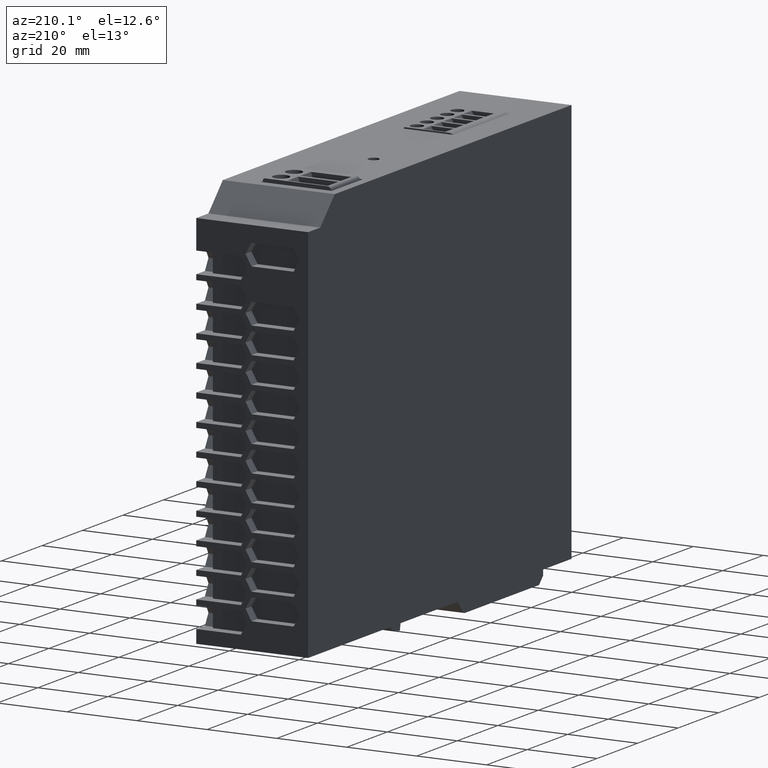
[diagram: clean part render]
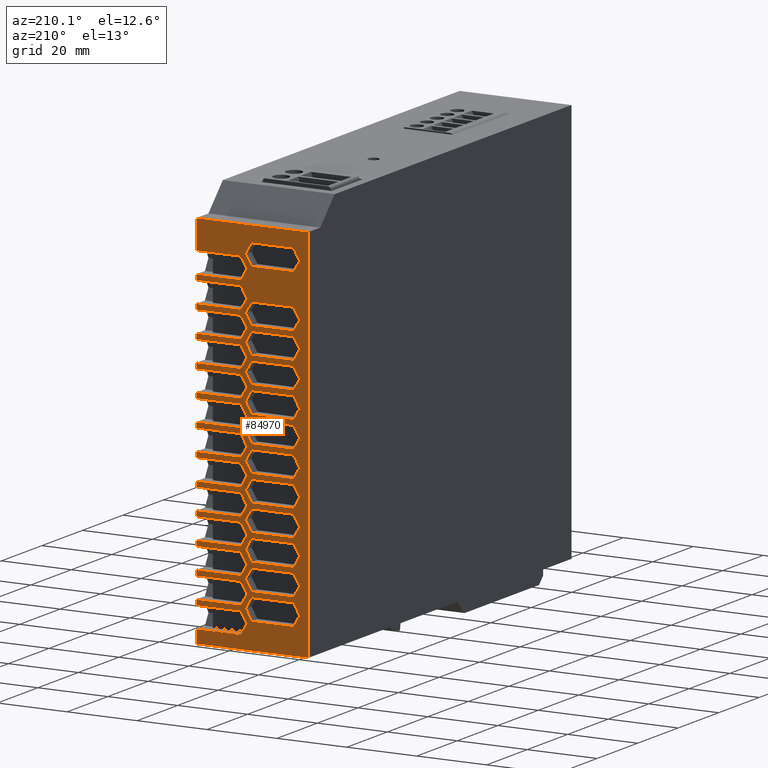
[diagram: same view with one face highlighted and labeled with its STEP entity id]
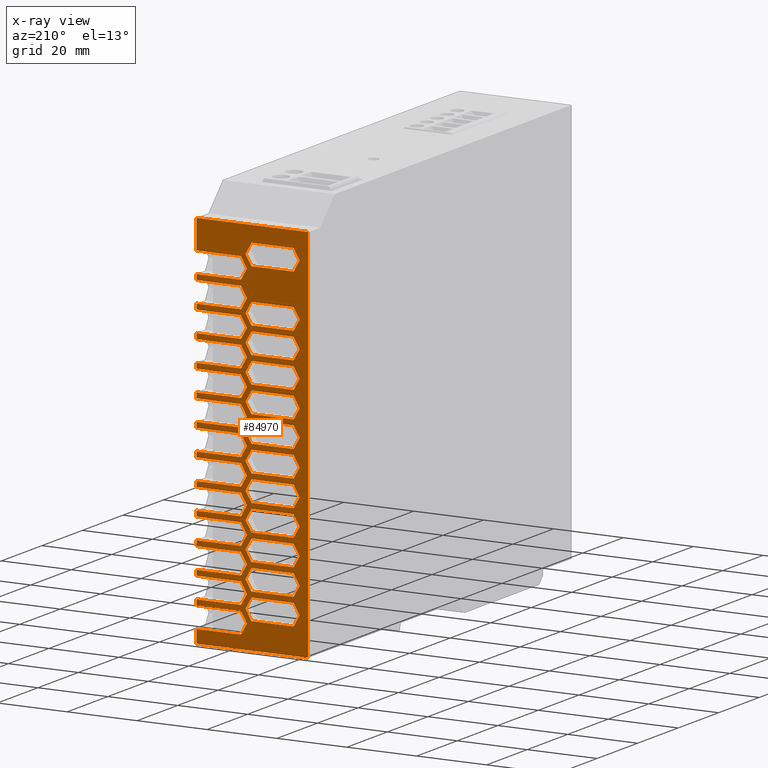
[diagram: x-ray of the same camera — body ghosted, the highlighted face saturated]
A machine part, auxiliary view. The second image highlights one B-rep face of the part: STEP entity #84970.
The next image is the same camera in x-ray: the body ghosted, the highlighted face saturated — about 0% of this face is hidden behind the body in this view.
In plain terms, the highlighted planar face has unit normal (0, 1, 0).
Its self-contained STEP definition (entity closure, byte-faithful):
#1290=CARTESIAN_POINT('',(32.,65.,-104.250000000001));
#1300=VERTEX_POINT('',#1290);
#1330=CARTESIAN_POINT('',(0.,65.,-104.249999999998));
#1340=DIRECTION('',(1.,0.,0.));
#1350=VECTOR('',#1340,1.);
#1360=LINE('',#1330,#1350);
#1370=CARTESIAN_POINT('',(19.2320508075694,65.,-104.25));
#1380=VERTEX_POINT('',#1370);
#1390=EDGE_CURVE('',#1380,#1300,#1360,.T.);
#4260=CARTESIAN_POINT('',(75.0906893516693,65.,0.));
#4270=DIRECTION('',(0.500000000000017,0.,0.866025403784429));
#4280=VECTOR('',#4270,1.);
#4290=LINE('',#4260,#4280);
#4300=CARTESIAN_POINT('',(17.5000000000013,65.,-99.7500000000005));
#4310=VERTEX_POINT('',#4300);
#4320=CARTESIAN_POINT('',(19.2320508075694,65.,-96.7500000000005));
#4330=VERTEX_POINT('',#4320);
#4340=EDGE_CURVE('',#4310,#4330,#4290,.T.);
#6670=CARTESIAN_POINT('',(0.,65.,-80.2499999999986));
#6680=DIRECTION('',(-1.,0.,0.));
#6690=VECTOR('',#6680,1.);
#6700=LINE('',#6670,#6690);
#6710=CARTESIAN_POINT('',(32.,65.,-80.2500000000008));
#6720=VERTEX_POINT('',#6710);
#6730=CARTESIAN_POINT('',(19.2320508075704,65.,-80.2500000000007));
#6740=VERTEX_POINT('',#6730);
#6750=EDGE_CURVE('',#6720,#6740,#6700,.T.);
#7230=CARTESIAN_POINT('',(0.,65.,-65.2500000000007));
#7240=DIRECTION('',(-1.,0.,0.));
#7250=VECTOR('',#7240,1.);
#7260=LINE('',#7230,#7250);
#7270=CARTESIAN_POINT('',(32.,65.,-65.2500000000008));
#7280=VERTEX_POINT('',#7270);
#7290=CARTESIAN_POINT('',(19.2320508075704,65.,-65.2500000000007));
#7300=VERTEX_POINT('',#7290);
#7310=EDGE_CURVE('',#7280,#7300,#7260,.T.);
#18890=CARTESIAN_POINT('',(70.7605623327469,65.,0.));
#18900=DIRECTION('',(0.500000000000017,0.,0.866025403784429));
#18910=VECTOR('',#18900,1.);
#18920=LINE('',#18890,#18910);
#18930=CARTESIAN_POINT('',(17.5000000000013,65.,-92.2500000000005));
#18940=VERTEX_POINT('',#18930);
#18950=CARTESIAN_POINT('',(19.2320508075694,65.,-89.2500000000005));
#18960=VERTEX_POINT('',#18950);
#18970=EDGE_CURVE('',#18940,#18960,#18920,.T.);
#19290=CARTESIAN_POINT('',(0.,65.,-95.2500000000007));
#19300=DIRECTION('',(-1.,0.,0.));
#19310=VECTOR('',#19300,1.);
#19320=LINE('',#19290,#19310);
#19330=CARTESIAN_POINT('',(32.,65.,-95.2500000000008));
#19340=VERTEX_POINT('',#19330);
#19350=CARTESIAN_POINT('',(19.2320508075704,65.,-95.2500000000007));
#19360=VERTEX_POINT('',#19350);
#19370=EDGE_CURVE('',#19340,#19360,#19320,.T.);
#21190=CARTESIAN_POINT('',(79.4208163705917,65.,0.));
#21200=DIRECTION('',(0.500000000000017,0.,0.866025403784429));
#21210=VECTOR('',#21200,1.);
#21220=LINE('',#21190,#21210);
#21230=CARTESIAN_POINT('',(17.5000000000013,65.,-107.25));
#21240=VERTEX_POINT('',#21230);
#21250=EDGE_CURVE('',#21240,#1380,#21220,.T.);
#21500=CARTESIAN_POINT('',(53.4400542570574,65.,0.));
#21510=DIRECTION('',(0.500000000000017,0.,0.866025403784429));
#21520=VECTOR('',#21510,1.);
#21530=LINE('',#21500,#21520);
#21540=CARTESIAN_POINT('',(17.5000000000013,65.,-62.2500000000005));
#21550=VERTEX_POINT('',#21540);
#21560=CARTESIAN_POINT('',(19.2320508075694,65.,-59.2500000000005));
#21570=VERTEX_POINT('',#21560);
#21580=EDGE_CURVE('',#21550,#21570,#21530,.T.);
#27810=CARTESIAN_POINT('',(0.,65.,-114.));
#27820=VERTEX_POINT('',#27810);
#27850=CARTESIAN_POINT('',(0.,65.,173.567243465811));
#27860=DIRECTION('',(0.,0.,-1.));
#27870=VECTOR('',#27860,1.);
#27880=LINE('',#27850,#27870);
#27890=CARTESIAN_POINT('',(0.,65.,-6.));
#27900=VERTEX_POINT('',#27890);
#27910=EDGE_CURVE('',#27900,#27820,#27880,.T.);
#35190=CARTESIAN_POINT('',(0.,65.,-72.7500000000007));
#35200=DIRECTION('',(-1.,0.,0.));
#35210=VECTOR('',#35200,1.);
#35220=LINE('',#35190,#35210);
#35230=CARTESIAN_POINT('',(32.,65.,-72.7500000000008));
#35240=VERTEX_POINT('',#35230);
#35250=CARTESIAN_POINT('',(19.2320508075704,65.,-72.7500000000007));
#35260=VERTEX_POINT('',#35250);
#35270=EDGE_CURVE('',#35240,#35260,#35220,.T.);
#43350=CARTESIAN_POINT('',(32.,65.,-6.));
#43360=VERTEX_POINT('',#43350);
#43390=CARTESIAN_POINT('',(32.,65.,0.));
#43400=DIRECTION('',(0.,0.,-1.));
#43410=VECTOR('',#43400,1.);
#43420=LINE('',#43390,#43410);
#43430=CARTESIAN_POINT('',(32.,65.,-14.2500000000007));
#43440=VERTEX_POINT('',#43430);
#43450=EDGE_CURVE('',#43360,#43440,#43420,.T.);
#43750=CARTESIAN_POINT('',(32.,65.,-20.2500000000008));
#43760=VERTEX_POINT('',#43750);
#43790=CARTESIAN_POINT('',(32.,65.,-21.7499999999998));
#43800=VERTEX_POINT('',#43790);
#43810=EDGE_CURVE('',#43760,#43800,#43420,.T.);
#43950=CARTESIAN_POINT('',(32.,65.,-27.7500000000008));
#43960=VERTEX_POINT('',#43950);
#43990=CARTESIAN_POINT('',(32.,65.,-29.2499999999996));
#44000=VERTEX_POINT('',#43990);
#44010=EDGE_CURVE('',#43960,#44000,#43420,.T.);
#44310=CARTESIAN_POINT('',(32.,65.,-35.2500000000008));
#44320=VERTEX_POINT('',#44310);
#44350=CARTESIAN_POINT('',(32.,65.,-36.7499999999995));
#44360=VERTEX_POINT('',#44350);
#44370=EDGE_CURVE('',#44320,#44360,#43420,.T.);
#44670=CARTESIAN_POINT('',(32.,65.,-42.7500000000008));
#44680=VERTEX_POINT('',#44670);
#44710=CARTESIAN_POINT('',(32.,65.,-44.2499999999993));
#44720=VERTEX_POINT('',#44710);
#44730=EDGE_CURVE('',#44680,#44720,#43420,.T.);
#45030=CARTESIAN_POINT('',(32.,65.,-50.2500000000008));
#45040=VERTEX_POINT('',#45030);
#45070=CARTESIAN_POINT('',(32.,65.,-51.7499999999991));
#45080=VERTEX_POINT('',#45070);
#45090=EDGE_CURVE('',#45040,#45080,#43420,.T.);
#45230=CARTESIAN_POINT('',(32.,65.,-57.7500000000008));
#45240=VERTEX_POINT('',#45230);
#45270=CARTESIAN_POINT('',(32.,65.,-59.2499999999989));
#45280=VERTEX_POINT('',#45270);
#45290=EDGE_CURVE('',#45240,#45280,#43420,.T.);
#45540=CARTESIAN_POINT('',(32.,65.,-66.7499999999987));
#45550=VERTEX_POINT('',#45540);
#45560=EDGE_CURVE('',#7280,#45550,#43420,.T.);
#45720=CARTESIAN_POINT('',(32.,65.,-74.2499999999986));
#45730=VERTEX_POINT('',#45720);
#45740=EDGE_CURVE('',#35240,#45730,#43420,.T.);
#45990=CARTESIAN_POINT('',(32.,65.,-81.7499999999984));
#46000=VERTEX_POINT('',#45990);
#46010=EDGE_CURVE('',#6720,#46000,#43420,.T.);
#46310=CARTESIAN_POINT('',(32.,65.,-87.7500000000008));
#46320=VERTEX_POINT('',#46310);
#46350=CARTESIAN_POINT('',(32.,65.,-89.2499999999982));
#46360=VERTEX_POINT('',#46350);
#46370=EDGE_CURVE('',#46320,#46360,#43420,.T.);
#46530=CARTESIAN_POINT('',(32.,65.,-96.7500000000007));
#46540=VERTEX_POINT('',#46530);
#46550=EDGE_CURVE('',#19340,#46540,#43420,.T.);
#46760=CARTESIAN_POINT('',(32.,65.,-102.750000000001));
#46770=VERTEX_POINT('',#46760);
#46800=EDGE_CURVE('',#46770,#1300,#43420,.T.);
#46940=CARTESIAN_POINT('',(32.,65.,-110.249999999998));
#46950=VERTEX_POINT('',#46940);
#46980=CARTESIAN_POINT('',(32.,65.,-114.));
#46990=VERTEX_POINT('',#46980);
#47000=EDGE_CURVE('',#46950,#46990,#43420,.T.);
#55830=CARTESIAN_POINT('',(0.,65.,-114.));
#55840=DIRECTION('',(-1.,0.,0.));
#55850=VECTOR('',#55840,1.);
#55860=LINE('',#55830,#55850);
#55870=EDGE_CURVE('',#46990,#27820,#55860,.T.);
#57860=CARTESIAN_POINT('',(0.,65.,-29.2499999999996));
#57870=DIRECTION('',(1.,0.,0.));
#57880=VECTOR('',#57870,1.);
#57890=LINE('',#57860,#57880);
#57900=CARTESIAN_POINT('',(19.2320508075701,65.,-29.2500000000008));
#57910=VERTEX_POINT('',#57900);
#57920=EDGE_CURVE('',#57910,#44000,#57890,.T.);
#60080=CARTESIAN_POINT('',(-40.0906893516667,65.,0.));
#60090=DIRECTION('',(-0.500000000000017,0.,0.866025403784429));
#60100=VECTOR('',#60090,1.);
#60110=LINE('',#60080,#60100);
#60120=CARTESIAN_POINT('',(19.2320508075704,65.,-102.750000000001));
#60130=VERTEX_POINT('',#60120);
#60140=EDGE_CURVE('',#60130,#4310,#60110,.T.);
#60320=CARTESIAN_POINT('',(-44.4208163705891,65.,0.));
#60330=DIRECTION('',(-0.500000000000017,0.,0.866025403784429));
#60340=VECTOR('',#60330,1.);
#60350=LINE('',#60320,#60340);
#60360=CARTESIAN_POINT('',(19.2320508075704,65.,-110.250000000001));
#60370=VERTEX_POINT('',#60360);
#60380=EDGE_CURVE('',#60370,#21240,#60350,.T.);
#62840=CARTESIAN_POINT('',(57.7701812759798,65.,0.));
#62850=DIRECTION('',(0.500000000000017,0.,0.866025403784429));
#62860=VECTOR('',#62850,1.);
#62870=LINE('',#62840,#62860);
#62880=CARTESIAN_POINT('',(17.5000000000013,65.,-69.7500000000005));
#62890=VERTEX_POINT('',#62880);
#62900=CARTESIAN_POINT('',(19.2320508075694,65.,-66.7500000000005));
#62910=VERTEX_POINT('',#62900);
#62920=EDGE_CURVE('',#62890,#62910,#62870,.T.);
#71570=CARTESIAN_POINT('',(0.,65.,-110.250000000001));
#71580=DIRECTION('',(-1.,0.,0.));
#71590=VECTOR('',#71580,1.);
#71600=LINE('',#71570,#71590);
#71610=EDGE_CURVE('',#46950,#60370,#71600,.T.);
#75650=CARTESIAN_POINT('',(66.4304353138246,65.,0.));
#75660=DIRECTION('',(0.500000000000017,0.,0.866025403784429));
#75670=VECTOR('',#75660,1.);
#75680=LINE('',#75650,#75670);
#75690=CARTESIAN_POINT('',(17.5000000000013,65.,-84.7500000000005));
#75700=VERTEX_POINT('',#75690);
#75710=CARTESIAN_POINT('',(19.2320508075694,65.,-81.7500000000005));
#75720=VERTEX_POINT('',#75710);
#75730=EDGE_CURVE('',#75700,#75720,#75680,.T.);
#75910=CARTESIAN_POINT('',(40.,65.,-114.));
#75920=DIRECTION('',(0.,1.,0.));
#75930=DIRECTION('',(0.,0.,-1.));
#75940=AXIS2_PLACEMENT_3D('',#75910,#75920,#75930);
#75950=PLANE('',#75940);
#75960=CARTESIAN_POINT('',(0.,65.,-84.0000000000008));
#75970=DIRECTION('',(-1.,0.,0.));
#75980=VECTOR('',#75970,1.);
#75990=LINE('',#75960,#75980);
#76000=CARTESIAN_POINT('',(16.2009491924313,65.,-84.0000000000008));
#76010=VERTEX_POINT('',#76000);
#76020=CARTESIAN_POINT('',(4.16505080757037,65.,-84.0000000000006));
#76030=VERTEX_POINT('',#76020);
#76040=EDGE_CURVE('',#76010,#76030,#75990,.T.);
#76050=ORIENTED_EDGE('',*,*,#76040,.F.);
#76060=CARTESIAN_POINT('',(-44.3323718043607,65.,0.));
#76070=DIRECTION('',(-0.500000000000017,0.,0.866025403784429));
#76080=VECTOR('',#76070,1.);
#76090=LINE('',#76060,#76080);
#76100=CARTESIAN_POINT('',(2.43300000000031,65.,-81.0000000000005));
#76110=VERTEX_POINT('',#76100);
#76120=EDGE_CURVE('',#76030,#76110,#76090,.T.);
#76130=ORIENTED_EDGE('',*,*,#76120,.F.);
#76140=CARTESIAN_POINT('',(49.1983718043624,65.,0.));
#76150=DIRECTION('',(0.500000000000017,0.,0.866025403784429));
#76160=VECTOR('',#76150,1.);
#76170=LINE('',#76140,#76160);
#76180=CARTESIAN_POINT('',(4.16505080756943,65.,-78.0000000000005));
#76190=VERTEX_POINT('',#76180);
#76200=EDGE_CURVE('',#76110,#76190,#76170,.T.);
#76210=ORIENTED_EDGE('',*,*,#76200,.F.);
#76220=CARTESIAN_POINT('',(0.,65.,-78.0000000000005));
#76230=DIRECTION('',(1.,0.,0.));
#76240=VECTOR('',#76230,1.);
#76250=LINE('',#76220,#76240);
#76260=CARTESIAN_POINT('',(16.2009491924294,65.,-78.0000000000005));
#76270=VERTEX_POINT('',#76260);
#76280=EDGE_CURVE('',#76190,#76270,#76250,.T.);
#76290=ORIENTED_EDGE('',*,*,#76280,.F.);
#76300=CARTESIAN_POINT('',(-28.8323718043638,65.,0.));
#76310=DIRECTION('',(0.500000000000017,0.,-0.866025403784429));
#76320=VECTOR('',#76310,1.);
#76330=LINE('',#76300,#76320);
#76340=CARTESIAN_POINT('',(17.9329999999994,65.,-81.0000000000008));
#76350=VERTEX_POINT('',#76340);
#76360=EDGE_CURVE('',#76270,#76350,#76330,.T.);
#76370=ORIENTED_EDGE('',*,*,#76360,.F.);
#76380=CARTESIAN_POINT('',(64.6983718043617,65.,0.));
#76390=DIRECTION('',(-0.500000000000017,0.,-0.866025403784429));
#76400=VECTOR('',#76390,1.);
#76410=LINE('',#76380,#76400);
#76420=EDGE_CURVE('',#76350,#76010,#76410,.T.);
#76430=ORIENTED_EDGE('',*,*,#76420,.F.);
#76440=EDGE_LOOP('',(#76430,#76370,#76290,#76210,#76130,#76050));
#76450=FACE_BOUND('',#76440,.T.);
#76460=CARTESIAN_POINT('',(27.5477367097504,65.,0.));
#76470=DIRECTION('',(0.500000000000017,0.,0.866025403784429));
#76480=VECTOR('',#76470,1.);
#76490=LINE('',#76460,#76480);
#76500=CARTESIAN_POINT('',(2.43300000000031,65.,-43.5000000000005));
#76510=VERTEX_POINT('',#76500);
#76520=CARTESIAN_POINT('',(4.16505080756943,65.,-40.5000000000005));
#76530=VERTEX_POINT('',#76520);
#76540=EDGE_CURVE('',#76510,#76530,#76490,.T.);
#76550=ORIENTED_EDGE('',*,*,#76540,.F.);
#76560=CARTESIAN_POINT('',(0.,65.,-40.5000000000005));
#76570=DIRECTION('',(1.,0.,0.));
#76580=VECTOR('',#76570,1.);
#76590=LINE('',#76560,#76580);
#76600=CARTESIAN_POINT('',(16.2009491924294,65.,-40.5000000000006));
#76610=VERTEX_POINT('',#76600);
#76620=EDGE_CURVE('',#76530,#76610,#76590,.T.);
#76630=ORIENTED_EDGE('',*,*,#76620,.F.);
#76640=CARTESIAN_POINT('',(-7.18173670975189,65.,0.));
#76650=DIRECTION('',(0.500000000000017,0.,-0.866025403784429));
#76660=VECTOR('',#76650,1.);
#76670=LINE('',#76640,#76660);
#76680=CARTESIAN_POINT('',(17.9329999999987,65.,-43.5000000000013));
#76690=VERTEX_POINT('',#76680);
#76700=EDGE_CURVE('',#76610,#76690,#76670,.T.);
#76710=ORIENTED_EDGE('',*,*,#76700,.F.);
#76720=CARTESIAN_POINT('',(43.0477367097497,65.,0.));
#76730=DIRECTION('',(-0.500000000000017,0.,-0.866025403784429));
#76740=VECTOR('',#76730,1.);
#76750=LINE('',#76720,#76740);
#76760=CARTESIAN_POINT('',(16.2009491924313,65.,-46.5000000000008));
#76770=VERTEX_POINT('',#76760);
#76780=EDGE_CURVE('',#76690,#76770,#76750,.T.);
#76790=ORIENTED_EDGE('',*,*,#76780,.F.);
#76800=CARTESIAN_POINT('',(0.,65.,-46.5000000000008));
#76810=DIRECTION('',(-1.,0.,0.));
#76820=VECTOR('',#76810,1.);
#76830=LINE('',#76800,#76820);
#76840=CARTESIAN_POINT('',(4.16505080757036,65.,-46.5000000000006));
#76850=VERTEX_POINT('',#76840);
#76860=EDGE_CURVE('',#76770,#76850,#76830,.T.);
#76870=ORIENTED_EDGE('',*,*,#76860,.F.);
#76880=CARTESIAN_POINT('',(-22.6817367097488,65.,0.));
#76890=DIRECTION('',(-0.500000000000017,0.,0.866025403784429));
#76900=VECTOR('',#76890,1.);
#76910=LINE('',#76880,#76900);
#76920=EDGE_CURVE('',#76850,#76510,#76910,.T.);
#76930=ORIENTED_EDGE('',*,*,#76920,.F.);
#76940=EDGE_LOOP('',(#76930,#76870,#76790,#76710,#76630,#76550));
#76950=FACE_BOUND('',#76940,.T.);
#76960=CARTESIAN_POINT('',(57.8586258422071,65.,0.));
#76970=DIRECTION('',(0.500000000000017,0.,0.866025403784429));
#76980=VECTOR('',#76970,1.);
#76990=LINE('',#76960,#76980);
#77000=CARTESIAN_POINT('',(2.43300000000031,65.,-96.0000000000005));
#77010=VERTEX_POINT('',#77000);
#77020=CARTESIAN_POINT('',(4.16505080756943,65.,-93.0000000000005));
#77030=VERTEX_POINT('',#77020);
#77040=EDGE_CURVE('',#77010,#77030,#76990,.T.);
#77050=ORIENTED_EDGE('',*,*,#77040,.F.);
#77060=CARTESIAN_POINT('',(0.,65.,-93.0000000000005));
#77070=DIRECTION('',(1.,0.,0.));
#77080=VECTOR('',#77070,1.);
#77090=LINE('',#77060,#77080);
#77100=CARTESIAN_POINT('',(16.2009491924294,65.,-93.0000000000006));
#77110=VERTEX_POINT('',#77100);
#77120=EDGE_CURVE('',#77030,#77110,#77090,.T.);
#77130=ORIENTED_EDGE('',*,*,#77120,.F.);
#77140=CARTESIAN_POINT('',(-37.4926258422086,65.,0.));
#77150=DIRECTION('',(0.500000000000017,0.,-0.866025403784429));
#77160=VECTOR('',#77150,1.);
#77170=LINE('',#77140,#77160);
#77180=CARTESIAN_POINT('',(17.9329999999987,65.,-96.0000000000013));
#77190=VERTEX_POINT('',#77180);
#77200=EDGE_CURVE('',#77110,#77190,#77170,.T.);
#77210=ORIENTED_EDGE('',*,*,#77200,.F.);
#77220=CARTESIAN_POINT('',(73.3586258422065,65.,0.));
#77230=DIRECTION('',(-0.500000000000017,0.,-0.866025403784429));
#77240=VECTOR('',#77230,1.);
#77250=LINE('',#77220,#77240);
#77260=CARTESIAN_POINT('',(16.2009491924313,65.,-99.0000000000008));
#77270=VERTEX_POINT('',#77260);
#77280=EDGE_CURVE('',#77190,#77270,#77250,.T.);
#77290=ORIENTED_EDGE('',*,*,#77280,.F.);
#77300=CARTESIAN_POINT('',(0.,65.,-99.0000000000008));
#77310=DIRECTION('',(-1.,0.,0.));
#77320=VECTOR('',#77310,1.);
#77330=LINE('',#77300,#77320);
#77340=CARTESIAN_POINT('',(4.16505080757037,65.,-99.0000000000007));
#77350=VERTEX_POINT('',#77340);
#77360=EDGE_CURVE('',#77270,#77350,#77330,.T.);
#77370=ORIENTED_EDGE('',*,*,#77360,.F.);
#77380=CARTESIAN_POINT('',(-52.9926258422055,65.,0.));
#77390=DIRECTION('',(-0.500000000000017,0.,0.866025403784429));
#77400=VECTOR('',#77390,1.);
#77410=LINE('',#77380,#77400);
#77420=EDGE_CURVE('',#77350,#77010,#77410,.T.);
#77430=ORIENTED_EDGE('',*,*,#77420,.F.);
#77440=EDGE_LOOP('',(#77430,#77370,#77290,#77210,#77130,#77050));
#77450=FACE_BOUND('',#77440,.T.);
#77460=CARTESIAN_POINT('',(0.,65.,-48.0000000000005));
#77470=DIRECTION('',(1.,0.,0.));
#77480=VECTOR('',#77470,1.);
#77490=LINE('',#77460,#77480);
#77500=CARTESIAN_POINT('',(4.16505080756943,65.,-48.0000000000005));
#77510=VERTEX_POINT('',#77500);
#77520=CARTESIAN_POINT('',(16.2009491924294,65.,-48.0000000000006));
#77530=VERTEX_POINT('',#77520);
#77540=EDGE_CURVE('',#77510,#77530,#77490,.T.);
#77550=ORIENTED_EDGE('',*,*,#77540,.F.);
#77560=CARTESIAN_POINT('',(-11.5118637286743,65.,0.));
#77570=DIRECTION('',(0.500000000000017,0.,-0.866025403784429));
#77580=VECTOR('',#77570,1.);
#77590=LINE('',#77560,#77580);
#77600=CARTESIAN_POINT('',(17.9329999999994,65.,-51.0000000000008));
#77610=VERTEX_POINT('',#77600);
#77620=EDGE_CURVE('',#77530,#77610,#77590,.T.);
#77630=ORIENTED_EDGE('',*,*,#77620,.F.);
#77640=CARTESIAN_POINT('',(47.3778637286721,65.,0.));
#77650=DIRECTION('',(-0.500000000000017,0.,-0.866025403784429));
#77660=VECTOR('',#77650,1.);
#77670=LINE('',#77640,#77660);
#77680=CARTESIAN_POINT('',(16.2009491924307,65.,-54.0000000000005));
#77690=VERTEX_POINT('',#77680);
#77700=EDGE_CURVE('',#77610,#77690,#77670,.T.);
#77710=ORIENTED_EDGE('',*,*,#77700,.F.);
#77720=CARTESIAN_POINT('',(0.,65.,-54.0000000000008));
#77730=DIRECTION('',(-1.,0.,0.));
#77740=VECTOR('',#77730,1.);
#77750=LINE('',#77720,#77740);
#77760=CARTESIAN_POINT('',(4.16505080757036,65.,-54.0000000000006));
#77770=VERTEX_POINT('',#77760);
#77780=EDGE_CURVE('',#77690,#77770,#77750,.T.);
#77790=ORIENTED_EDGE('',*,*,#77780,.F.);
#77800=CARTESIAN_POINT('',(-27.0118637286712,65.,0.));
#77810=DIRECTION('',(-0.500000000000017,0.,0.866025403784429));
#77820=VECTOR('',#77810,1.);
#77830=LINE('',#77800,#77820);
#77840=CARTESIAN_POINT('',(2.43300000000032,65.,-51.0000000000005));
#77850=VERTEX_POINT('',#77840);
#77860=EDGE_CURVE('',#77770,#77850,#77830,.T.);
#77870=ORIENTED_EDGE('',*,*,#77860,.F.);
#77880=CARTESIAN_POINT('',(31.8778637286728,65.,0.));
#77890=DIRECTION('',(0.500000000000017,0.,0.866025403784429));
#77900=VECTOR('',#77890,1.);
#77910=LINE('',#77880,#77900);
#77920=EDGE_CURVE('',#77850,#77510,#77910,.T.);
#77930=ORIENTED_EDGE('',*,*,#77920,.F.);
#77940=EDGE_LOOP('',(#77930,#77870,#77790,#77710,#77630,#77550));
#77950=FACE_BOUND('',#77940,.T.);
#77960=CARTESIAN_POINT('',(51.7079907475945,65.,0.));
#77970=DIRECTION('',(-0.500000000000017,0.,-0.866025403784429));
#77980=VECTOR('',#77970,1.);
#77990=LINE('',#77960,#77980);
#78000=CARTESIAN_POINT('',(17.9329999999987,65.,-58.5000000000013));
#78010=VERTEX_POINT('',#78000);
#78020=CARTESIAN_POINT('',(16.2009491924313,65.,-61.5000000000008));
#78030=VERTEX_POINT('',#78020);
#78040=EDGE_CURVE('',#78010,#78030,#77990,.T.);
#78050=ORIENTED_EDGE('',*,*,#78040,.F.);
#78060=CARTESIAN_POINT('',(0.,65.,-61.5000000000008));
#78070=DIRECTION('',(-1.,0.,0.));
#78080=VECTOR('',#78070,1.);
#78090=LINE('',#78060,#78080);
#78100=CARTESIAN_POINT('',(4.16505080757037,65.,-61.5000000000006));
#78110=VERTEX_POINT('',#78100);
#78120=EDGE_CURVE('',#78030,#78110,#78090,.T.);
#78130=ORIENTED_EDGE('',*,*,#78120,.F.);
#78140=CARTESIAN_POINT('',(-31.3419907475936,65.,0.));
#78150=DIRECTION('',(-0.500000000000017,0.,0.866025403784429));
#78160=VECTOR('',#78150,1.);
#78170=LINE('',#78140,#78160);
#78180=CARTESIAN_POINT('',(2.43300000000032,65.,-58.5000000000005));
#78190=VERTEX_POINT('',#78180);
#78200=EDGE_CURVE('',#78110,#78190,#78170,.T.);
#78210=ORIENTED_EDGE('',*,*,#78200,.F.);
#78220=CARTESIAN_POINT('',(36.2079907475952,65.,0.));
#78230=DIRECTION('',(0.500000000000017,0.,0.866025403784429));
#78240=VECTOR('',#78230,1.);
#78250=LINE('',#78220,#78240);
#78260=CARTESIAN_POINT('',(4.16505080756943,65.,-55.5000000000005));
#78270=VERTEX_POINT('',#78260);
#78280=EDGE_CURVE('',#78190,#78270,#78250,.T.);
#78290=ORIENTED_EDGE('',*,*,#78280,.F.);
#78300=CARTESIAN_POINT('',(0.,65.,-55.5000000000005));
#78310=DIRECTION('',(1.,0.,0.));
#78320=VECTOR('',#78310,1.);
#78330=LINE('',#78300,#78320);
#78340=CARTESIAN_POINT('',(16.2009491924294,65.,-55.5000000000007));
#78350=VERTEX_POINT('',#78340);
#78360=EDGE_CURVE('',#78270,#78350,#78330,.T.);
#78370=ORIENTED_EDGE('',*,*,#78360,.F.);
#78380=CARTESIAN_POINT('',(-15.8419907475967,65.,0.));
#78390=DIRECTION('',(0.500000000000017,0.,-0.866025403784429));
#78400=VECTOR('',#78390,1.);
#78410=LINE('',#78380,#78400);
#78420=EDGE_CURVE('',#78350,#78010,#78410,.T.);
#78430=ORIENTED_EDGE('',*,*,#78420,.F.);
#78440=EDGE_LOOP('',(#78430,#78370,#78290,#78210,#78130,#78050));
#78450=FACE_BOUND('',#78440,.T.);
#78460=CARTESIAN_POINT('',(0.,65.,-33.0000000000005));
#78470=DIRECTION('',(1.,0.,0.));
#78480=VECTOR('',#78470,1.);
#78490=LINE('',#78460,#78480);
#78500=CARTESIAN_POINT('',(4.16505080756931,65.,-33.0000000000004));
#78510=VERTEX_POINT('',#78500);
#78520=CARTESIAN_POINT('',(16.2009491924294,65.,-33.0000000000006));
#78530=VERTEX_POINT('',#78520);
#78540=EDGE_CURVE('',#78510,#78530,#78490,.T.);
#78550=ORIENTED_EDGE('',*,*,#78540,.F.);
#78560=CARTESIAN_POINT('',(-2.85160969082951,65.,0.));
#78570=DIRECTION('',(0.500000000000017,0.,-0.866025403784429));
#78580=VECTOR('',#78570,1.);
#78590=LINE('',#78560,#78580);
#78600=CARTESIAN_POINT('',(17.9329999999994,65.,-36.0000000000008));
#78610=VERTEX_POINT('',#78600);
#78620=EDGE_CURVE('',#78530,#78610,#78590,.T.);
#78630=ORIENTED_EDGE('',*,*,#78620,.F.);
#78640=CARTESIAN_POINT('',(38.7176096908274,65.,0.));
#78650=DIRECTION('',(-0.500000000000017,0.,-0.866025403784429));
#78660=VECTOR('',#78650,1.);
#78670=LINE('',#78640,#78660);
#78680=CARTESIAN_POINT('',(16.2009491924313,65.,-39.0000000000008));
#78690=VERTEX_POINT('',#78680);
#78700=EDGE_CURVE('',#78610,#78690,#78670,.T.);
#78710=ORIENTED_EDGE('',*,*,#78700,.F.);
#78720=CARTESIAN_POINT('',(0.,65.,-39.0000000000008));
#78730=DIRECTION('',(-1.,0.,0.));
#78740=VECTOR('',#78730,1.);
#78750=LINE('',#78720,#78740);
#78760=CARTESIAN_POINT('',(4.16505080757037,65.,-39.0000000000006));
#78770=VERTEX_POINT('',#78760);
#78780=EDGE_CURVE('',#78690,#78770,#78750,.T.);
#78790=ORIENTED_EDGE('',*,*,#78780,.F.);
#78800=CARTESIAN_POINT('',(-18.3516096908264,65.,0.));
#78810=DIRECTION('',(-0.500000000000017,0.,0.866025403784429));
#78820=VECTOR('',#78810,1.);
#78830=LINE('',#78800,#78820);
#78840=CARTESIAN_POINT('',(2.43300000000031,65.,-36.0000000000005));
#78850=VERTEX_POINT('',#78840);
#78860=EDGE_CURVE('',#78770,#78850,#78830,.T.);
#78870=ORIENTED_EDGE('',*,*,#78860,.F.);
#78880=CARTESIAN_POINT('',(23.217609690828,65.,0.));
#78890=DIRECTION('',(0.500000000000017,0.,0.866025403784429));
#78900=VECTOR('',#78890,1.);
#78910=LINE('',#78880,#78900);
#78920=EDGE_CURVE('',#78850,#78510,#78910,.T.);
#78930=ORIENTED_EDGE('',*,*,#78920,.F.);
#78940=EDGE_LOOP('',(#78930,#78870,#78790,#78710,#78630,#78550));
#78950=FACE_BOUND('',#78940,.T.);
#78960=CARTESIAN_POINT('',(-5.36122863405926,65.,0.));
#78970=DIRECTION('',(-0.500000000000017,0.,0.866025403784429));
#78980=VECTOR('',#78970,1.);
#78990=LINE('',#78960,#78980);
#79000=CARTESIAN_POINT('',(4.16505080757037,65.,-16.5000000000008));
#79010=VERTEX_POINT('',#79000);
#79020=CARTESIAN_POINT('',(2.43300000000031,65.,-13.5000000000005));
#79030=VERTEX_POINT('',#79020);
#79040=EDGE_CURVE('',#79010,#79030,#78990,.T.);
#79050=ORIENTED_EDGE('',*,*,#79040,.F.);
#79060=CARTESIAN_POINT('',(10.2272286340609,65.,0.));
#79070=DIRECTION('',(0.500000000000017,0.,0.866025403784429));
#79080=VECTOR('',#79070,1.);
#79090=LINE('',#79060,#79080);
#79100=CARTESIAN_POINT('',(4.16505080756943,65.,-10.5000000000005));
#79110=VERTEX_POINT('',#79100);
#79120=EDGE_CURVE('',#79030,#79110,#79090,.T.);
#79130=ORIENTED_EDGE('',*,*,#79120,.F.);
#79140=CARTESIAN_POINT('',(0.,65.,-10.5000000000005));
#79150=DIRECTION('',(1.,0.,0.));
#79160=VECTOR('',#79150,1.);
#79170=LINE('',#79140,#79160);
#79180=CARTESIAN_POINT('',(16.2009491924294,65.,-10.5000000000007));
#79190=VERTEX_POINT('',#79180);
#79200=EDGE_CURVE('',#79110,#79190,#79170,.T.);
#79210=ORIENTED_EDGE('',*,*,#79200,.F.);
#79220=CARTESIAN_POINT('',(10.1387713659377,65.,0.));
#79230=DIRECTION('',(0.500000000000017,0.,-0.866025403784429));
#79240=VECTOR('',#79230,1.);
#79250=LINE('',#79220,#79240);
#79260=CARTESIAN_POINT('',(17.9329999999994,65.,-13.5000000000008));
#79270=VERTEX_POINT('',#79260);
#79280=EDGE_CURVE('',#79190,#79270,#79250,.T.);
#79290=ORIENTED_EDGE('',*,*,#79280,.F.);
#79300=CARTESIAN_POINT('',(25.7272286340602,65.,0.));
#79310=DIRECTION('',(-0.500000000000017,0.,-0.866025403784429));
#79320=VECTOR('',#79310,1.);
#79330=LINE('',#79300,#79320);
#79340=CARTESIAN_POINT('',(16.2009491924313,65.,-16.5000000000008));
#79350=VERTEX_POINT('',#79340);
#79360=EDGE_CURVE('',#79270,#79350,#79330,.T.);
#79370=ORIENTED_EDGE('',*,*,#79360,.F.);
#79380=CARTESIAN_POINT('',(0.,65.,-16.5000000000008));
#79390=DIRECTION('',(-1.,0.,0.));
#79400=VECTOR('',#79390,1.);
#79410=LINE('',#79380,#79400);
#79420=EDGE_CURVE('',#79350,#79010,#79410,.T.);
#79430=ORIENTED_EDGE('',*,*,#79420,.F.);
#79440=EDGE_LOOP('',(#79430,#79370,#79290,#79210,#79130,#79050));
#79450=FACE_BOUND('',#79440,.T.);
#79460=CARTESIAN_POINT('',(-41.822752861131,65.,0.));
#79470=DIRECTION('',(0.500000000000017,0.,-0.866025403784429));
#79480=VECTOR('',#79470,1.);
#79490=LINE('',#79460,#79480);
#79500=CARTESIAN_POINT('',(16.2009491924294,65.,-100.5));
#79510=VERTEX_POINT('',#79500);
#79520=CARTESIAN_POINT('',(17.9329999999994,65.,-103.500000000001));
#79530=VERTEX_POINT('',#79520);
#79540=EDGE_CURVE('',#79510,#79530,#79490,.T.);
#79550=ORIENTED_EDGE('',*,*,#79540,.F.);
#79560=CARTESIAN_POINT('',(77.6887528611289,65.,0.));
#79570=DIRECTION('',(-0.500000000000017,0.,-0.866025403784429));
#79580=VECTOR('',#79570,1.);
#79590=LINE('',#79560,#79580);
#79600=CARTESIAN_POINT('',(16.2009491924313,65.,-106.500000000001));
#79610=VERTEX_POINT('',#79600);
#79620=EDGE_CURVE('',#79530,#79610,#79590,.T.);
#79630=ORIENTED_EDGE('',*,*,#79620,.F.);
#79640=CARTESIAN_POINT('',(0.,65.,-106.500000000001));
#79650=DIRECTION('',(-1.,0.,0.));
#79660=VECTOR('',#79650,1.);
#79670=LINE('',#79640,#79660);
#79680=CARTESIAN_POINT('',(4.16505080757037,65.,-106.500000000001));
#79690=VERTEX_POINT('',#79680);
#79700=EDGE_CURVE('',#79610,#79690,#79670,.T.);
#79710=ORIENTED_EDGE('',*,*,#79700,.F.);
#79720=CARTESIAN_POINT('',(-57.3227528611279,65.,0.));
#79730=DIRECTION('',(-0.500000000000017,0.,0.866025403784429));
#79740=VECTOR('',#79730,1.);
#79750=LINE('',#79720,#79740);
#79760=CARTESIAN_POINT('',(2.43300000000031,65.,-103.5));
#79770=VERTEX_POINT('',#79760);
#79780=EDGE_CURVE('',#79690,#79770,#79750,.T.);
#79790=ORIENTED_EDGE('',*,*,#79780,.F.);
#79800=CARTESIAN_POINT('',(62.1887528611295,65.,0.));
#79810=DIRECTION('',(0.500000000000017,0.,0.866025403784429));
#79820=VECTOR('',#79810,1.);
#79830=LINE('',#79800,#79820);
#79840=CARTESIAN_POINT('',(4.16505080756943,65.,-100.5));
#79850=VERTEX_POINT('',#79840);
#79860=EDGE_CURVE('',#79770,#79850,#79830,.T.);
#79870=ORIENTED_EDGE('',*,*,#79860,.F.);
#79880=CARTESIAN_POINT('',(0.,65.,-100.5));
#79890=DIRECTION('',(1.,0.,0.));
#79900=VECTOR('',#79890,1.);
#79910=LINE('',#79880,#79900);
#79920=EDGE_CURVE('',#79850,#79510,#79910,.T.);
#79930=ORIENTED_EDGE('',*,*,#79920,.F.);
#79940=EDGE_LOOP('',(#79930,#79870,#79790,#79710,#79630,#79550));
#79950=FACE_BOUND('',#79940,.T.);
#79960=CARTESIAN_POINT('',(-35.672117766516,65.,0.));
#79970=DIRECTION('',(-0.500000000000017,0.,0.866025403784429));
#79980=VECTOR('',#79970,1.);
#79990=LINE('',#79960,#79980);
#80000=CARTESIAN_POINT('',(4.16505080757036,65.,-69.0000000000007));
#80010=VERTEX_POINT('',#80000);
#80020=CARTESIAN_POINT('',(2.43300000000105,65.,-66.));
#80030=VERTEX_POINT('',#80020);
#80040=EDGE_CURVE('',#80010,#80030,#79990,.T.);
#80050=ORIENTED_EDGE('',*,*,#80040,.F.);
#80060=CARTESIAN_POINT('',(40.5381177665176,65.,0.));
#80070=DIRECTION('',(0.500000000000017,0.,0.866025403784429));
#80080=VECTOR('',#80070,1.);
#80090=LINE('',#80060,#80080);
#80100=CARTESIAN_POINT('',(4.16505080756943,65.,-63.0000000000005));
#80110=VERTEX_POINT('',#80100);
#80120=EDGE_CURVE('',#80030,#80110,#80090,.T.);
#80130=ORIENTED_EDGE('',*,*,#80120,.F.);
#80140=CARTESIAN_POINT('',(0.,65.,-63.0000000000005));
#80150=DIRECTION('',(1.,0.,0.));
#80160=VECTOR('',#80150,1.);
#80170=LINE('',#80140,#80160);
#80180=CARTESIAN_POINT('',(16.2009491924294,65.,-63.0000000000006));
#80190=VERTEX_POINT('',#80180);
#80200=EDGE_CURVE('',#80110,#80190,#80170,.T.);
#80210=ORIENTED_EDGE('',*,*,#80200,.F.);
#80220=CARTESIAN_POINT('',(-20.1721177665191,65.,0.));
#80230=DIRECTION('',(0.500000000000017,0.,-0.866025403784429));
#80240=VECTOR('',#80230,1.);
#80250=LINE('',#80220,#80240);
#80260=CARTESIAN_POINT('',(17.9329999999994,65.,-66.0000000000008));
#80270=VERTEX_POINT('',#80260);
#80280=EDGE_CURVE('',#80190,#80270,#80250,.T.);
#80290=ORIENTED_EDGE('',*,*,#80280,.F.);
#80300=CARTESIAN_POINT('',(56.0381177665169,65.,0.));
#80310=DIRECTION('',(-0.500000000000017,0.,-0.866025403784429));
#80320=VECTOR('',#80310,1.);
#80330=LINE('',#80300,#80320);
#80340=CARTESIAN_POINT('',(16.2009491924313,65.,-69.0000000000008));
#80350=VERTEX_POINT('',#80340);
#80360=EDGE_CURVE('',#80270,#80350,#80330,.T.);
#80370=ORIENTED_EDGE('',*,*,#80360,.F.);
#80380=CARTESIAN_POINT('',(0.,65.,-69.0000000000008));
#80390=DIRECTION('',(-1.,0.,0.));
#80400=VECTOR('',#80390,1.);
#80410=LINE('',#80380,#80400);
#80420=EDGE_CURVE('',#80350,#80010,#80410,.T.);
#80430=ORIENTED_EDGE('',*,*,#80420,.F.);
#80440=EDGE_LOOP('',(#80430,#80370,#80290,#80210,#80130,#80050));
#80450=FACE_BOUND('',#80440,.T.);
#80460=ORIENTED_EDGE('',*,*,#46550,.T.);
#80470=ORIENTED_EDGE('',*,*,#19370,.F.);
#80480=CARTESIAN_POINT('',(-35.7605623327443,65.,0.));
#80490=DIRECTION('',(-0.500000000000017,0.,0.866025403784429));
#80500=VECTOR('',#80490,1.);
#80510=LINE('',#80480,#80500);
#80520=EDGE_CURVE('',#19360,#18940,#80510,.T.);
#80530=ORIENTED_EDGE('',*,*,#80520,.F.);
#80540=ORIENTED_EDGE('',*,*,#18970,.F.);
#80550=CARTESIAN_POINT('',(0.,65.,-89.2500000000005));
#80560=DIRECTION('',(1.,0.,0.));
#80570=VECTOR('',#80560,1.);
#80580=LINE('',#80550,#80570);
#80590=EDGE_CURVE('',#18960,#46360,#80580,.T.);
#80600=ORIENTED_EDGE('',*,*,#80590,.F.);
#80610=ORIENTED_EDGE('',*,*,#46370,.T.);
#80620=CARTESIAN_POINT('',(0.,65.,-87.7500000000007));
#80630=DIRECTION('',(-1.,0.,0.));
#80640=VECTOR('',#80630,1.);
#80650=LINE('',#80620,#80640);
#80660=CARTESIAN_POINT('',(19.2320508075704,65.,-87.7500000000007));
#80670=VERTEX_POINT('',#80660);
#80680=EDGE_CURVE('',#46320,#80670,#80650,.T.);
#80690=ORIENTED_EDGE('',*,*,#80680,.F.);
#80700=CARTESIAN_POINT('',(-31.4304353138219,65.,0.));
#80710=DIRECTION('',(-0.500000000000017,0.,0.866025403784429));
#80720=VECTOR('',#80710,1.);
#80730=LINE('',#80700,#80720);
#80740=EDGE_CURVE('',#80670,#75700,#80730,.T.);
#80750=ORIENTED_EDGE('',*,*,#80740,.F.);
#80760=ORIENTED_EDGE('',*,*,#75730,.F.);
#80770=CARTESIAN_POINT('',(0.,65.,-81.7499999999984));
#80780=DIRECTION('',(1.,0.,0.));
#80790=VECTOR('',#80780,1.);
#80800=LINE('',#80770,#80790);
#80810=EDGE_CURVE('',#75720,#46000,#80800,.T.);
#80820=ORIENTED_EDGE('',*,*,#80810,.F.);
#80830=ORIENTED_EDGE('',*,*,#46010,.T.);
#80840=ORIENTED_EDGE('',*,*,#6750,.F.);
#80850=CARTESIAN_POINT('',(-27.1003082948995,65.,0.));
#80860=DIRECTION('',(-0.500000000000017,0.,0.866025403784429));
#80870=VECTOR('',#80860,1.);
#80880=LINE('',#80850,#80870);
#80890=CARTESIAN_POINT('',(17.5000000000013,65.,-77.2500000000005));
#80900=VERTEX_POINT('',#80890);
#80910=EDGE_CURVE('',#6740,#80900,#80880,.T.);
#80920=ORIENTED_EDGE('',*,*,#80910,.F.);
#80930=CARTESIAN_POINT('',(62.1003082949022,65.,0.));
#80940=DIRECTION('',(0.500000000000017,0.,0.866025403784429));
#80950=VECTOR('',#80940,1.);
#80960=LINE('',#80930,#80950);
#80970=CARTESIAN_POINT('',(19.2320508075694,65.,-74.2500000000005));
#80980=VERTEX_POINT('',#80970);
#80990=EDGE_CURVE('',#80900,#80980,#80960,.T.);
#81000=ORIENTED_EDGE('',*,*,#80990,.F.);
#81010=CARTESIAN_POINT('',(0.,65.,-74.2499999999986));
#81020=DIRECTION('',(1.,0.,0.));
#81030=VECTOR('',#81020,1.);
#81040=LINE('',#81010,#81030);
#81050=EDGE_CURVE('',#80980,#45730,#81040,.T.);
#81060=ORIENTED_EDGE('',*,*,#81050,.F.);
#81070=ORIENTED_EDGE('',*,*,#45740,.T.);
#81080=ORIENTED_EDGE('',*,*,#35270,.F.);
#81090=CARTESIAN_POINT('',(-22.7701812759772,65.,0.));
#81100=DIRECTION('',(-0.500000000000017,0.,0.866025403784429));
#81110=VECTOR('',#81100,1.);
#81120=LINE('',#81090,#81110);
#81130=EDGE_CURVE('',#35260,#62890,#81120,.T.);
#81140=ORIENTED_EDGE('',*,*,#81130,.F.);
#81150=ORIENTED_EDGE('',*,*,#62920,.F.);
#81160=CARTESIAN_POINT('',(0.,65.,-66.7500000000005));
#81170=DIRECTION('',(1.,0.,0.));
#81180=VECTOR('',#81170,1.);
#81190=LINE('',#81160,#81180);
#81200=EDGE_CURVE('',#62910,#45550,#81190,.T.);
#81210=ORIENTED_EDGE('',*,*,#81200,.F.);
#81220=ORIENTED_EDGE('',*,*,#45560,.T.);
#81230=ORIENTED_EDGE('',*,*,#7310,.F.);
#81240=CARTESIAN_POINT('',(-18.4400542570548,65.,0.));
#81250=DIRECTION('',(-0.500000000000017,0.,0.866025403784429));
#81260=VECTOR('',#81250,1.);
#81270=LINE('',#81240,#81260);
#81280=EDGE_CURVE('',#7300,#21550,#81270,.T.);
#81290=ORIENTED_EDGE('',*,*,#81280,.F.);
#81300=ORIENTED_EDGE('',*,*,#21580,.F.);
#81310=CARTESIAN_POINT('',(0.,65.,-59.2499999999989));
#81320=DIRECTION('',(1.,0.,0.));
#81330=VECTOR('',#81320,1.);
#81340=LINE('',#81310,#81330);
#81350=EDGE_CURVE('',#21570,#45280,#81340,.T.);
#81360=ORIENTED_EDGE('',*,*,#81350,.F.);
#81370=ORIENTED_EDGE('',*,*,#45290,.T.);
#81380=CARTESIAN_POINT('',(0.,65.,-57.7499999999991));
#81390=DIRECTION('',(-1.,0.,0.));
#81400=VECTOR('',#81390,1.);
#81410=LINE('',#81380,#81400);
#81420=CARTESIAN_POINT('',(19.2320508075704,65.,-57.7500000000007));
#81430=VERTEX_POINT('',#81420);
#81440=EDGE_CURVE('',#45240,#81430,#81410,.T.);
#81450=ORIENTED_EDGE('',*,*,#81440,.F.);
#81460=CARTESIAN_POINT('',(-14.1099272381324,65.,0.));
#81470=DIRECTION('',(-0.500000000000017,0.,0.866025403784429));
#81480=VECTOR('',#81470,1.);
#81490=LINE('',#81460,#81480);
#81500=CARTESIAN_POINT('',(17.5000000000013,65.,-54.7500000000005));
#81510=VERTEX_POINT('',#81500);
#81520=EDGE_CURVE('',#81430,#81510,#81490,.T.);
#81530=ORIENTED_EDGE('',*,*,#81520,.F.);
#81540=CARTESIAN_POINT('',(49.109927238135,65.,0.));
#81550=DIRECTION('',(0.500000000000017,0.,0.866025403784429));
#81560=VECTOR('',#81550,1.);
#81570=LINE('',#81540,#81560);
#81580=CARTESIAN_POINT('',(19.2320508075694,65.,-51.7500000000005));
#81590=VERTEX_POINT('',#81580);
#81600=EDGE_CURVE('',#81510,#81590,#81570,.T.);
#81610=ORIENTED_EDGE('',*,*,#81600,.F.);
#81620=CARTESIAN_POINT('',(0.,65.,-51.7499999999991));
#81630=DIRECTION('',(1.,0.,0.));
#81640=VECTOR('',#81630,1.);
#81650=LINE('',#81620,#81640);
#81660=EDGE_CURVE('',#81590,#45080,#81650,.T.);
#81670=ORIENTED_EDGE('',*,*,#81660,.F.);
#81680=ORIENTED_EDGE('',*,*,#45090,.T.);
#81690=CARTESIAN_POINT('',(0.,65.,-50.2499999999993));
#81700=DIRECTION('',(-1.,0.,0.));
#81710=VECTOR('',#81700,1.);
#81720=LINE('',#81690,#81710);
#81730=CARTESIAN_POINT('',(19.2320508075704,65.,-50.2500000000006));
#81740=VERTEX_POINT('',#81730);
#81750=EDGE_CURVE('',#45040,#81740,#81720,.T.);
#81760=ORIENTED_EDGE('',*,*,#81750,.F.);
#81770=CARTESIAN_POINT('',(-9.77980021921,65.,0.));
#81780=DIRECTION('',(-0.500000000000017,0.,0.866025403784429));
#81790=VECTOR('',#81780,1.);
#81800=LINE('',#81770,#81790);
#81810=CARTESIAN_POINT('',(17.5000000000013,65.,-47.2500000000005));
#81820=VERTEX_POINT('',#81810);
#81830=EDGE_CURVE('',#81740,#81820,#81800,.T.);
#81840=ORIENTED_EDGE('',*,*,#81830,.F.);
#81850=CARTESIAN_POINT('',(44.7798002192126,65.,0.));
#81860=DIRECTION('',(0.500000000000017,0.,0.866025403784429));
#81870=VECTOR('',#81860,1.);
#81880=LINE('',#81850,#81870);
#81890=CARTESIAN_POINT('',(19.2320508075694,65.,-44.2500000000005));
#81900=VERTEX_POINT('',#81890);
#81910=EDGE_CURVE('',#81820,#81900,#81880,.T.);
#81920=ORIENTED_EDGE('',*,*,#81910,.F.);
#81930=CARTESIAN_POINT('',(0.,65.,-44.2499999999993));
#81940=DIRECTION('',(1.,0.,0.));
#81950=VECTOR('',#81940,1.);
#81960=LINE('',#81930,#81950);
#81970=EDGE_CURVE('',#81900,#44720,#81960,.T.);
#81980=ORIENTED_EDGE('',*,*,#81970,.F.);
#81990=ORIENTED_EDGE('',*,*,#44730,.T.);
#82000=CARTESIAN_POINT('',(0.,65.,-42.7500000000006));
#82010=DIRECTION('',(-1.,0.,0.));
#82020=VECTOR('',#82010,1.);
#82030=LINE('',#82000,#82020);
#82040=CARTESIAN_POINT('',(19.2320508075704,65.,-42.7500000000006));
#82050=VERTEX_POINT('',#82040);
#82060=EDGE_CURVE('',#44680,#82050,#82030,.T.);
#82070=ORIENTED_EDGE('',*,*,#82060,.F.);
#82080=CARTESIAN_POINT('',(-5.44967320028761,65.,0.));
#82090=DIRECTION('',(-0.500000000000017,0.,0.866025403784429));
#82100=VECTOR('',#82090,1.);
#82110=LINE('',#82080,#82100);
#82120=CARTESIAN_POINT('',(17.5000000000013,65.,-39.7500000000005));
#82130=VERTEX_POINT('',#82120);
#82140=EDGE_CURVE('',#82050,#82130,#82110,.T.);
#82150=ORIENTED_EDGE('',*,*,#82140,.F.);
#82160=CARTESIAN_POINT('',(40.4496732002902,65.,0.));
#82170=DIRECTION('',(0.500000000000017,0.,0.866025403784429));
#82180=VECTOR('',#82170,1.);
#82190=LINE('',#82160,#82180);
#82200=CARTESIAN_POINT('',(19.2320508075694,65.,-36.7500000000005));
#82210=VERTEX_POINT('',#82200);
#82220=EDGE_CURVE('',#82130,#82210,#82190,.T.);
#82230=ORIENTED_EDGE('',*,*,#82220,.F.);
#82240=CARTESIAN_POINT('',(0.,65.,-36.7500000000005));
#82250=DIRECTION('',(1.,0.,0.));
#82260=VECTOR('',#82250,1.);
#82270=LINE('',#82240,#82260);
#82280=EDGE_CURVE('',#82210,#44360,#82270,.T.);
#82290=ORIENTED_EDGE('',*,*,#82280,.F.);
#82300=ORIENTED_EDGE('',*,*,#44370,.T.);
#82310=CARTESIAN_POINT('',(0.,65.,-35.2499999999996));
#82320=DIRECTION('',(-1.,0.,0.));
#82330=VECTOR('',#82320,1.);
#82340=LINE('',#82310,#82330);
#82350=CARTESIAN_POINT('',(19.2320508075704,65.,-35.2500000000006));
#82360=VERTEX_POINT('',#82350);
#82370=EDGE_CURVE('',#44320,#82360,#82340,.T.);
#82380=ORIENTED_EDGE('',*,*,#82370,.F.);
#82390=CARTESIAN_POINT('',(-1.11954618136522,65.,0.));
#82400=DIRECTION('',(-0.500000000000017,0.,0.866025403784429));
#82410=VECTOR('',#82400,1.);
#82420=LINE('',#82390,#82410);
#82430=CARTESIAN_POINT('',(17.5000000000013,65.,-32.2500000000005));
#82440=VERTEX_POINT('',#82430);
#82450=EDGE_CURVE('',#82360,#82440,#82420,.T.);
#82460=ORIENTED_EDGE('',*,*,#82450,.F.);
#82470=CARTESIAN_POINT('',(36.1195461813678,65.,0.));
#82480=DIRECTION('',(0.500000000000017,0.,0.866025403784429));
#82490=VECTOR('',#82480,1.);
#82500=LINE('',#82470,#82490);
#82510=EDGE_CURVE('',#82440,#57910,#82500,.T.);
#82520=ORIENTED_EDGE('',*,*,#82510,.F.);
#82530=ORIENTED_EDGE('',*,*,#57920,.F.);
#82540=ORIENTED_EDGE('',*,*,#44010,.T.);
#82550=CARTESIAN_POINT('',(0.,65.,-27.7500000000006));
#82560=DIRECTION('',(-1.,0.,0.));
#82570=VECTOR('',#82560,1.);
#82580=LINE('',#82550,#82570);
#82590=CARTESIAN_POINT('',(19.2320508075704,65.,-27.7500000000006));
#82600=VERTEX_POINT('',#82590);
#82610=EDGE_CURVE('',#43960,#82600,#82580,.T.);
#82620=ORIENTED_EDGE('',*,*,#82610,.F.);
#82630=CARTESIAN_POINT('',(3.21058083755716,65.,0.));
#82640=DIRECTION('',(-0.500000000000017,0.,0.866025403784429));
#82650=VECTOR('',#82640,1.);
#82660=LINE('',#82630,#82650);
#82670=CARTESIAN_POINT('',(17.5000000000013,65.,-24.7500000000005));
#82680=VERTEX_POINT('',#82670);
#82690=EDGE_CURVE('',#82600,#82680,#82660,.T.);
#82700=ORIENTED_EDGE('',*,*,#82690,.F.);
#82710=CARTESIAN_POINT('',(31.7894191624455,65.,0.));
#82720=DIRECTION('',(0.500000000000017,0.,0.866025403784429));
#82730=VECTOR('',#82720,1.);
#82740=LINE('',#82710,#82730);
#82750=CARTESIAN_POINT('',(19.2320508075701,65.,-21.7500000000008));
#82760=VERTEX_POINT('',#82750);
#82770=EDGE_CURVE('',#82680,#82760,#82740,.T.);
#82780=ORIENTED_EDGE('',*,*,#82770,.F.);
#82790=CARTESIAN_POINT('',(0.,65.,-21.7499999999998));
#82800=DIRECTION('',(1.,0.,0.));
#82810=VECTOR('',#82800,1.);
#82820=LINE('',#82790,#82810);
#82830=EDGE_CURVE('',#82760,#43800,#82820,.T.);
#82840=ORIENTED_EDGE('',*,*,#82830,.F.);
#82850=ORIENTED_EDGE('',*,*,#43810,.T.);
#82860=CARTESIAN_POINT('',(0.,65.,-20.2500000000007));
#82870=DIRECTION('',(-1.,0.,0.));
#82880=VECTOR('',#82870,1.);
#82890=LINE('',#82860,#82880);
#82900=CARTESIAN_POINT('',(19.2320508075704,65.,-20.2500000000007));
#82910=VERTEX_POINT('',#82900);
#82920=EDGE_CURVE('',#43760,#82910,#82890,.T.);
#82930=ORIENTED_EDGE('',*,*,#82920,.F.);
#82940=CARTESIAN_POINT('',(7.54070785647955,65.,0.));
#82950=DIRECTION('',(-0.500000000000017,0.,0.866025403784429));
#82960=VECTOR('',#82950,1.);
#82970=LINE('',#82940,#82960);
#82980=CARTESIAN_POINT('',(17.5000000000013,65.,-17.2500000000005));
#82990=VERTEX_POINT('',#82980);
#83000=EDGE_CURVE('',#82910,#82990,#82970,.T.);
#83010=ORIENTED_EDGE('',*,*,#83000,.F.);
#83020=CARTESIAN_POINT('',(27.4592921435231,65.,0.));
#83030=DIRECTION('',(0.500000000000017,0.,0.866025403784429));
#83040=VECTOR('',#83030,1.);
#83050=LINE('',#83020,#83040);
#83060=CARTESIAN_POINT('',(19.2320508075694,65.,-14.2500000000005));
#83070=VERTEX_POINT('',#83060);
#83080=EDGE_CURVE('',#82990,#83070,#83050,.T.);
#83090=ORIENTED_EDGE('',*,*,#83080,.F.);
#83100=CARTESIAN_POINT('',(0.,65.,-14.2499999999998));
#83110=DIRECTION('',(1.,0.,0.));
#83120=VECTOR('',#83110,1.);
#83130=LINE('',#83100,#83120);
#83140=EDGE_CURVE('',#83070,#43440,#83130,.T.);
#83150=ORIENTED_EDGE('',*,*,#83140,.F.);
#83160=ORIENTED_EDGE('',*,*,#43450,.T.);
#83170=CARTESIAN_POINT('',(0.,65.,-6.));
#83180=DIRECTION('',(-1.,0.,0.));
#83190=VECTOR('',#83180,1.);
#83200=LINE('',#83170,#83190);
#83210=EDGE_CURVE('',#43360,#27900,#83200,.T.);
#83220=ORIENTED_EDGE('',*,*,#83210,.F.);
#83230=ORIENTED_EDGE('',*,*,#27910,.F.);
#83240=ORIENTED_EDGE('',*,*,#55870,.T.);
#83250=ORIENTED_EDGE('',*,*,#47000,.T.);
#83260=ORIENTED_EDGE('',*,*,#71610,.F.);
#83270=ORIENTED_EDGE('',*,*,#60380,.F.);
#83280=ORIENTED_EDGE('',*,*,#21250,.F.);
#83290=ORIENTED_EDGE('',*,*,#1390,.F.);
#83300=ORIENTED_EDGE('',*,*,#46800,.T.);
#83310=CARTESIAN_POINT('',(0.,65.,-102.749999999998));
#83320=DIRECTION('',(-1.,0.,0.));
#83330=VECTOR('',#83320,1.);
#83340=LINE('',#83310,#83330);
#83350=EDGE_CURVE('',#46770,#60130,#83340,.T.);
#83360=ORIENTED_EDGE('',*,*,#83350,.F.);
#83370=ORIENTED_EDGE('',*,*,#60140,.F.);
#83380=ORIENTED_EDGE('',*,*,#4340,.F.);
#83390=CARTESIAN_POINT('',(0.,65.,-96.7500000000005));
#83400=DIRECTION('',(1.,0.,0.));
#83410=VECTOR('',#83400,1.);
#83420=LINE('',#83390,#83410);
#83430=EDGE_CURVE('',#4330,#46540,#83420,.T.);
#83440=ORIENTED_EDGE('',*,*,#83430,.F.);
#83450=EDGE_LOOP('',(#83440,#83380,#83370,#83360,#83300,#83290,#83280,
#83270,#83260,#83250,#83240,#83230,#83220,#83160,#83150,#83090,#83010,
#82930,#82850,#82840,#82780,#82700,#82620,#82540,#82530,#82520,#82460,
#82380,#82300,#82290,#82230,#82150,#82070,#81990,#81980,#81920,#81840,
#81760,#81680,#81670,#81610,#81530,#81450,#81370,#81360,#81300,#81290,
#81230,#81220,#81210,#81150,#81140,#81080,#81070,#81060,#81000,#80920,
#80840,#80830,#80820,#80760,#80750,#80690,#80610,#80600,#80540,#80530,
#80470,#80460));
#83460=FACE_OUTER_BOUND('',#83450,.T.);
#83470=CARTESIAN_POINT('',(-24.5022447854414,65.,0.));
#83480=DIRECTION('',(0.500000000000017,0.,-0.866025403784429));
#83490=VECTOR('',#83480,1.);
#83500=LINE('',#83470,#83490);
#83510=CARTESIAN_POINT('',(16.2009491924294,65.,-70.5000000000007));
#83520=VERTEX_POINT('',#83510);
#83530=CARTESIAN_POINT('',(17.9329999999994,65.,-73.5000000000008));
#83540=VERTEX_POINT('',#83530);
#83550=EDGE_CURVE('',#83520,#83540,#83500,.T.);
#83560=ORIENTED_EDGE('',*,*,#83550,.F.);
#83570=CARTESIAN_POINT('',(60.3682447854393,65.,0.));
#83580=DIRECTION('',(-0.500000000000017,0.,-0.866025403784429));
#83590=VECTOR('',#83580,1.);
#83600=LINE('',#83570,#83590);
#83610=CARTESIAN_POINT('',(16.2009491924307,65.,-76.5000000000005));
#83620=VERTEX_POINT('',#83610);
#83630=EDGE_CURVE('',#83540,#83620,#83600,.T.);
#83640=ORIENTED_EDGE('',*,*,#83630,.F.);
#83650=CARTESIAN_POINT('',(0.,65.,-76.5000000000008));
#83660=DIRECTION('',(-1.,0.,0.));
#83670=VECTOR('',#83660,1.);
#83680=LINE('',#83650,#83670);
#83690=CARTESIAN_POINT('',(4.16505080757037,65.,-76.5000000000006));
#83700=VERTEX_POINT('',#83690);
#83710=EDGE_CURVE('',#83620,#83700,#83680,.T.);
#83720=ORIENTED_EDGE('',*,*,#83710,.F.);
#83730=CARTESIAN_POINT('',(-40.0022447854384,65.,0.));
#83740=DIRECTION('',(-0.500000000000017,0.,0.866025403784429));
#83750=VECTOR('',#83740,1.);
#83760=LINE('',#83730,#83750);
#83770=CARTESIAN_POINT('',(2.43300000000031,65.,-73.5000000000005));
#83780=VERTEX_POINT('',#83770);
#83790=EDGE_CURVE('',#83700,#83780,#83760,.T.);
#83800=ORIENTED_EDGE('',*,*,#83790,.F.);
#83810=CARTESIAN_POINT('',(44.86824478544,65.,0.));
#83820=DIRECTION('',(0.500000000000017,0.,0.866025403784429));
#83830=VECTOR('',#83820,1.);
#83840=LINE('',#83810,#83830);
#83850=CARTESIAN_POINT('',(4.16505080756943,65.,-70.5000000000005));
#83860=VERTEX_POINT('',#83850);
#83870=EDGE_CURVE('',#83780,#83860,#83840,.T.);
#83880=ORIENTED_EDGE('',*,*,#83870,.F.);
#83890=CARTESIAN_POINT('',(0.,65.,-70.5000000000005));
#83900=DIRECTION('',(1.,0.,0.));
#83910=VECTOR('',#83900,1.);
#83920=LINE('',#83890,#83910);
#83930=EDGE_CURVE('',#83860,#83520,#83920,.T.);
#83940=ORIENTED_EDGE('',*,*,#83930,.F.);
#83950=EDGE_LOOP('',(#83940,#83880,#83800,#83720,#83640,#83560));
#83960=FACE_BOUND('',#83950,.T.);
#83970=CARTESIAN_POINT('',(69.0284988232841,65.,0.));
#83980=DIRECTION('',(-0.500000000000017,0.,-0.866025403784429));
#83990=VECTOR('',#83980,1.);
#84000=LINE('',#83970,#83990);
#84010=CARTESIAN_POINT('',(17.9329999999994,65.,-88.5000000000008));
#84020=VERTEX_POINT('',#84010);
#84030=CARTESIAN_POINT('',(16.2009491924313,65.,-91.5000000000008));
#84040=VERTEX_POINT('',#84030);
#84050=EDGE_CURVE('',#84020,#84040,#84000,.T.);
#84060=ORIENTED_EDGE('',*,*,#84050,.F.);
#84070=CARTESIAN_POINT('',(0.,65.,-91.5000000000008));
#84080=DIRECTION('',(-1.,0.,0.));
#84090=VECTOR('',#84080,1.);
#84100=LINE('',#84070,#84090);
#84110=CARTESIAN_POINT('',(4.16505080757036,65.,-91.5000000000006));
#84120=VERTEX_POINT('',#84110);
#84130=EDGE_CURVE('',#84040,#84120,#84100,.T.);
#84140=ORIENTED_EDGE('',*,*,#84130,.F.);
#84150=CARTESIAN_POINT('',(-48.6624988232831,65.,0.));
#84160=DIRECTION('',(-0.500000000000017,0.,0.866025403784429));
#84170=VECTOR('',#84160,1.);
#84180=LINE('',#84150,#84170);
#84190=CARTESIAN_POINT('',(2.43300000000105,65.,-88.5));
#84200=VERTEX_POINT('',#84190);
#84210=EDGE_CURVE('',#84120,#84200,#84180,.T.);
#84220=ORIENTED_EDGE('',*,*,#84210,.F.);
#84230=CARTESIAN_POINT('',(53.5284988232848,65.,0.));
#84240=DIRECTION('',(0.500000000000017,0.,0.866025403784429));
#84250=VECTOR('',#84240,1.);
#84260=LINE('',#84230,#84250);
#84270=CARTESIAN_POINT('',(4.16505080756943,65.,-85.5000000000005));
#84280=VERTEX_POINT('',#84270);
#84290=EDGE_CURVE('',#84200,#84280,#84260,.T.);
#84300=ORIENTED_EDGE('',*,*,#84290,.F.);
#84310=CARTESIAN_POINT('',(0.,65.,-85.5000000000005));
#84320=DIRECTION('',(1.,0.,0.));
#84330=VECTOR('',#84320,1.);
#84340=LINE('',#84310,#84330);
#84350=CARTESIAN_POINT('',(16.2009491924294,65.,-85.5000000000006));
#84360=VERTEX_POINT('',#84350);
#84370=EDGE_CURVE('',#84280,#84360,#84340,.T.);
#84380=ORIENTED_EDGE('',*,*,#84370,.F.);
#84390=CARTESIAN_POINT('',(-33.1624988232862,65.,0.));
#84400=DIRECTION('',(0.500000000000017,0.,-0.866025403784429));
#84410=VECTOR('',#84400,1.);
#84420=LINE('',#84390,#84410);
#84430=EDGE_CURVE('',#84360,#84020,#84420,.T.);
#84440=ORIENTED_EDGE('',*,*,#84430,.F.);
#84450=EDGE_LOOP('',(#84440,#84380,#84300,#84220,#84140,#84060));
#84460=FACE_BOUND('',#84450,.T.);
#84470=CARTESIAN_POINT('',(0.,65.,-25.5000000000005));
#84480=DIRECTION('',(1.,0.,0.));
#84490=VECTOR('',#84480,1.);
#84500=LINE('',#84470,#84490);
#84510=CARTESIAN_POINT('',(4.16505080756943,65.,-25.5000000000005));
#84520=VERTEX_POINT('',#84510);
#84530=CARTESIAN_POINT('',(16.2009491924294,65.,-25.5000000000005));
#84540=VERTEX_POINT('',#84530);
#84550=EDGE_CURVE('',#84520,#84540,#84500,.T.);
#84560=ORIENTED_EDGE('',*,*,#84550,.F.);
#84570=CARTESIAN_POINT('',(1.47851732809288,65.,0.));
#84580=DIRECTION('',(0.500000000000017,0.,-0.866025403784429));
#84590=VECTOR('',#84580,1.);
#84600=LINE('',#84570,#84590);
#84610=CARTESIAN_POINT('',(17.9329999999994,65.,-28.5000000000008));
#84620=VERTEX_POINT('',#84610);
#84630=EDGE_CURVE('',#84540,#84620,#84600,.T.);
#84640=ORIENTED_EDGE('',*,*,#84630,.F.);
#84650=CARTESIAN_POINT('',(34.387482671905,65.,0.));
#84660=DIRECTION('',(-0.500000000000017,0.,-0.866025403784429));
#84670=VECTOR('',#84660,1.);
#84680=LINE('',#84650,#84670);
#84690=CARTESIAN_POINT('',(16.2009491924313,65.,-31.5000000000008));
#84700=VERTEX_POINT('',#84690);
#84710=EDGE_CURVE('',#84620,#84700,#84680,.T.);
#84720=ORIENTED_EDGE('',*,*,#84710,.F.);
#84730=CARTESIAN_POINT('',(0.,65.,-31.5000000000008));
#84740=DIRECTION('',(-1.,0.,0.));
#84750=VECTOR('',#84740,1.);
#84760=LINE('',#84730,#84750);
#84770=CARTESIAN_POINT('',(4.16505080757037,65.,-31.5000000000006));
#84780=VERTEX_POINT('',#84770);
#84790=EDGE_CURVE('',#84700,#84780,#84760,.T.);
#84800=ORIENTED_EDGE('',*,*,#84790,.F.);
#84810=CARTESIAN_POINT('',(-14.021482671904,65.,0.));
#84820=DIRECTION('',(-0.500000000000017,0.,0.866025403784429));
#84830=VECTOR('',#84820,1.);
#84840=LINE('',#84810,#84830);
#84850=CARTESIAN_POINT('',(2.43300000000031,65.,-28.5000000000005));
#84860=VERTEX_POINT('',#84850);
#84870=EDGE_CURVE('',#84780,#84860,#84840,.T.);
#84880=ORIENTED_EDGE('',*,*,#84870,.F.);
#84890=CARTESIAN_POINT('',(18.8874826719057,65.,0.));
#84900=DIRECTION('',(0.500000000000017,0.,0.866025403784429));
#84910=VECTOR('',#84900,1.);
#84920=LINE('',#84890,#84910);
#84930=EDGE_CURVE('',#84860,#84520,#84920,.T.);
#84940=ORIENTED_EDGE('',*,*,#84930,.F.);
#84950=EDGE_LOOP('',(#84940,#84880,#84800,#84720,#84640,#84560));
#84960=FACE_BOUND('',#84950,.T.);
#84970=ADVANCED_FACE('',(#76450,#76950,#77450,#77950,#78450,#78950,
#79450,#79950,#80450,#83460,#83960,#84460,#84960),#75950,.T.);